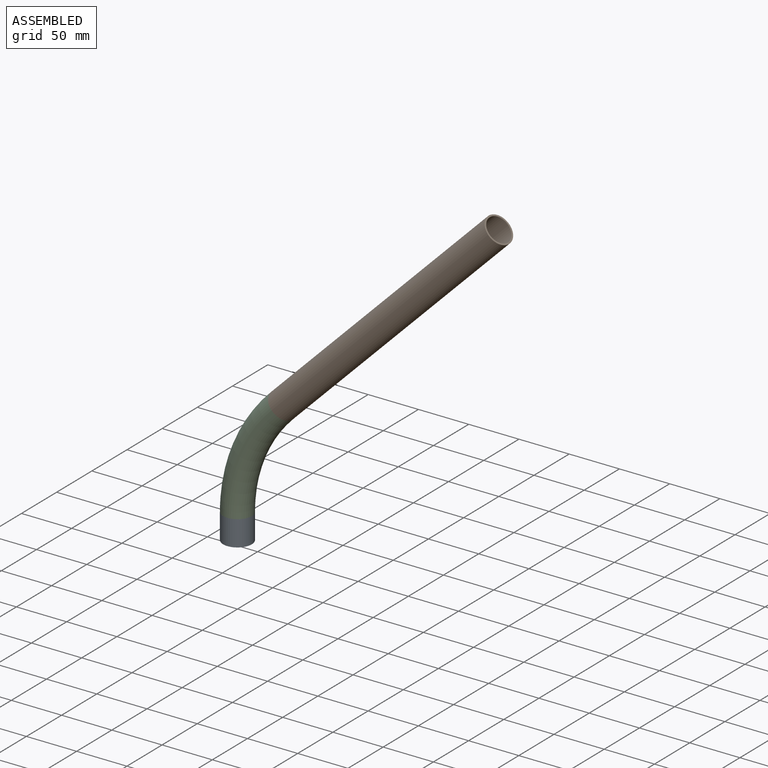
[diagram: assembled view]
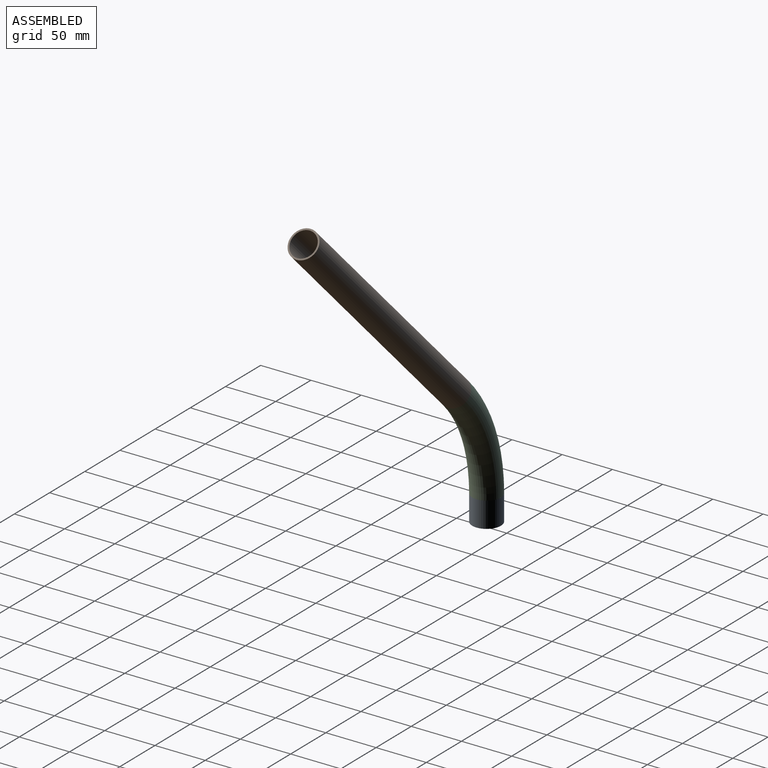
[diagram: assembled view, second angle]
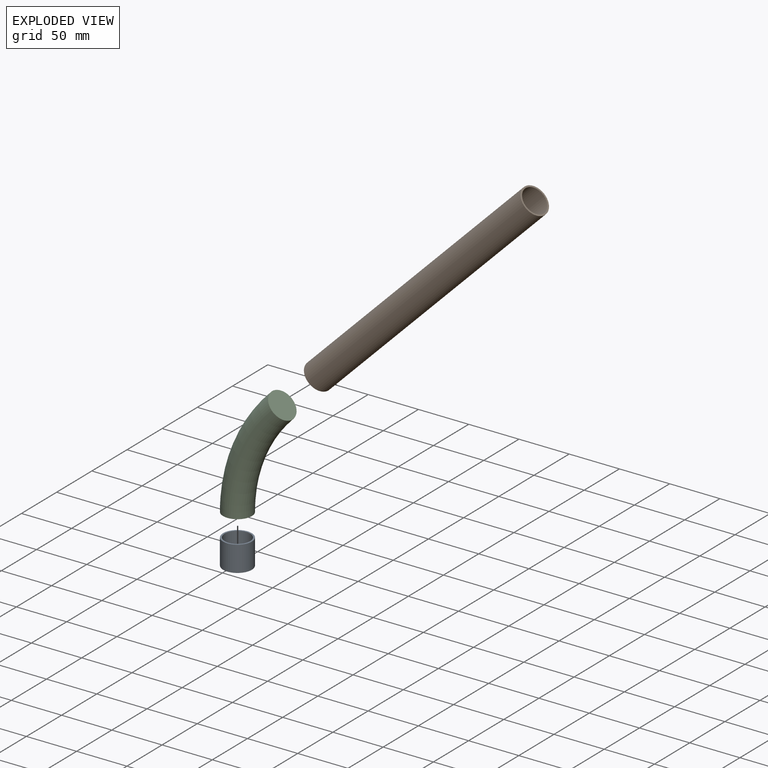
[diagram: exploded view]
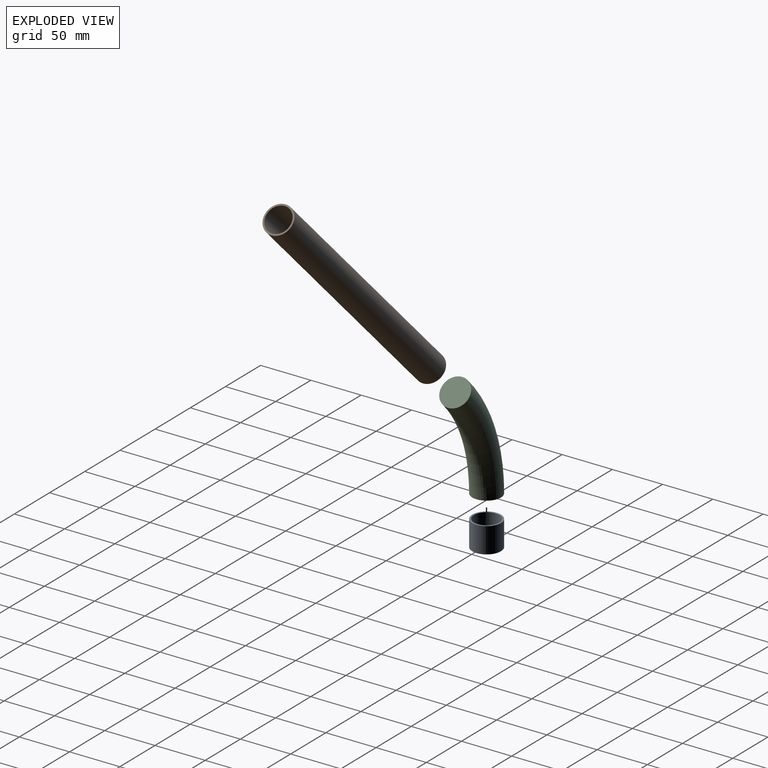
[diagram: exploded view, second angle]
ASSEMBLY  parts=3 mates=2
PART A: 4 faces, bbox 28.6x28.6x25.4 mm
  f0: cylinder r=12.7mm len=25.4mm, axis (0,0,-1), area 2026.8mm2, adj f2,f3
  f1: cylinder r=14.29mm len=28.58mm, axis (0,0,-1), area 2280.2mm2, adj f2,f3
  f2: plane 28.58x28.58mm, normal (0,0,1), area 134.6mm2, adj f0,f1
  f3: plane 28.58x28.58mm, normal (0,0,-1), area 134.6mm2, adj f0,f1
PART B: 4 faces, bbox 28.6x28.6x304.8 mm
  f0: cylinder r=12.7mm len=304.8mm, axis (0,0,-1), area 24322mm2, adj f2,f3
  f1: cylinder r=14.29mm len=304.8mm, axis (0,0,-1), area 27362.2mm2, adj f2,f3
  f2: plane 28.58x28.58mm, normal (0,0,1), area 134.6mm2, adj f0,f1
  f3: plane 28.58x28.58mm, normal (0,0,-1), area 134.6mm2, adj f0,f1
PART C: 3 faces, bbox 82.8x28.6x127.6 mm
  f0: torus R=152.4mm, axis (0,-1,0), area 10745.1mm2, adj f1,f2
  f1: plane 28.58x20.21mm, normal (0.71,0,0.71), area 641.3mm2, adj f0
  f2: plane 28.58x28.58mm, normal (0,0,-1), area 641.3mm2, adj f0
PLACE A at identity fixed
PLACE B rot(axis=(0,1,0),45deg) t=(44.64,0,133.16)mm
PLACE C t=(152.4,0,25.4)mm
MATE fastened C.f1 <-> B.f0  axis (0.71,0,0.71) through (44.64,0,133.16)mm
MATE fastened A.f0 <-> C.f2  axis (0,0,1) through (0,0,25.4)mm
